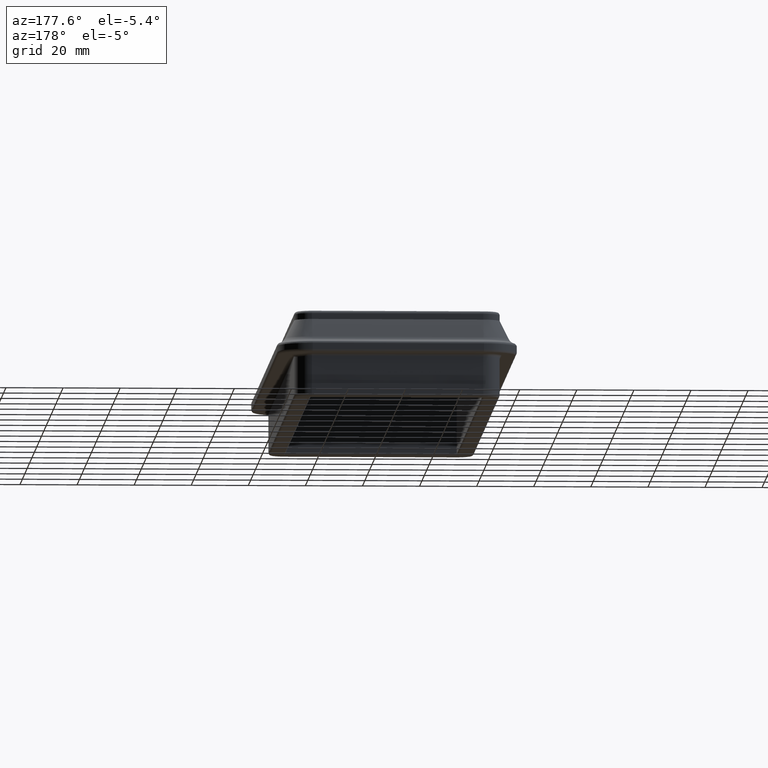
[diagram: clean part render]
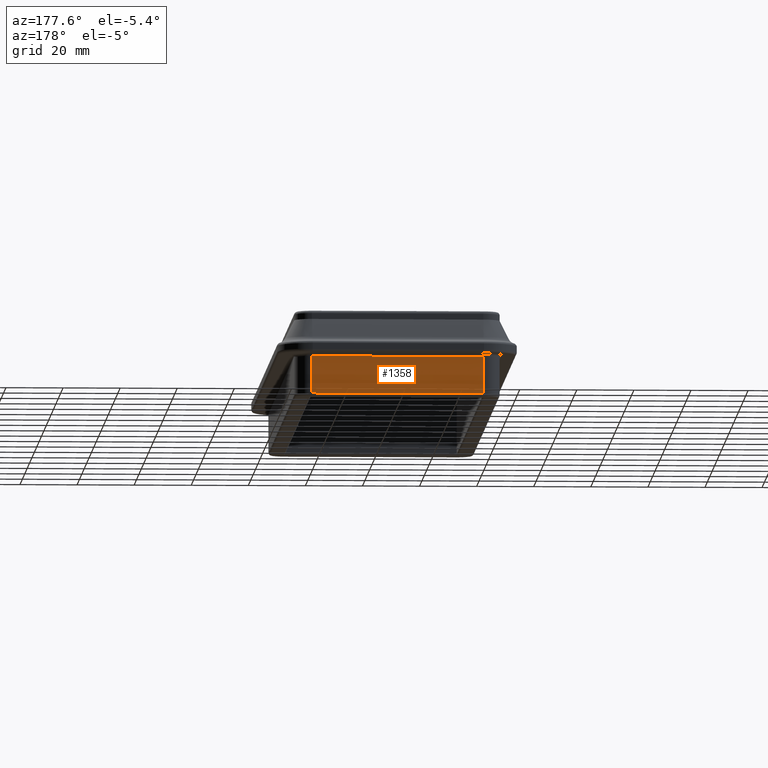
[diagram: same view with one face highlighted and labeled with its STEP entity id]
A machine part, auxiliary view. The second image highlights one B-rep face of the part: STEP entity #1358.
In plain terms, the highlighted planar face has unit normal (0, 1, 0).
Its self-contained STEP definition (entity closure, byte-faithful):
#28=PLANE('',#1514);
#101=FACE_OUTER_BOUND('',#196,.T.);
#196=EDGE_LOOP('',(#978,#979,#980,#981));
#291=LINE('',#2270,#391);
#295=LINE('',#2283,#395);
#296=LINE('',#2285,#396);
#297=LINE('',#2286,#397);
#391=VECTOR('',#1791,10.);
#395=VECTOR('',#1807,10.);
#396=VECTOR('',#1808,10.);
#397=VECTOR('',#1809,10.);
#603=VERTEX_POINT('',#2262);
#605=VERTEX_POINT('',#2268);
#608=VERTEX_POINT('',#2282);
#609=VERTEX_POINT('',#2284);
#737=EDGE_CURVE('',#605,#603,#291,.T.);
#744=EDGE_CURVE('',#608,#605,#295,.T.);
#745=EDGE_CURVE('',#609,#608,#296,.T.);
#746=EDGE_CURVE('',#609,#603,#297,.T.);
#978=ORIENTED_EDGE('',*,*,#737,.F.);
#979=ORIENTED_EDGE('',*,*,#744,.F.);
#980=ORIENTED_EDGE('',*,*,#745,.F.);
#981=ORIENTED_EDGE('',*,*,#746,.T.);
#1358=ADVANCED_FACE('',(#101),#28,.T.);
#1514=AXIS2_PLACEMENT_3D('',#2281,#1805,#1806);
#1791=DIRECTION('',(-1.,0.,0.));
#1805=DIRECTION('center_axis',(0.,1.,5.9211894646675E-16));
#1806=DIRECTION('ref_axis',(3.62568286252504E-32,-5.9211894646675E-16,1.));
#1807=DIRECTION('',(3.62568286252504E-32,-5.9211894646675E-16,1.));
#1808=DIRECTION('',(1.,0.,0.));
#1809=DIRECTION('',(3.62568286252504E-32,-5.9211894646675E-16,1.));
#2262=CARTESIAN_POINT('',(-30.,114.,-1.00000000000003));
#2268=CARTESIAN_POINT('',(30.,114.,-1.00000000000003));
#2270=CARTESIAN_POINT('',(-33.,114.,-1.00000000000003));
#2281=CARTESIAN_POINT('Origin',(-30.,114.,-15.));
#2282=CARTESIAN_POINT('',(30.,114.,-14.));
#2283=CARTESIAN_POINT('',(30.,114.,-15.));
#2284=CARTESIAN_POINT('',(-30.,114.,-14.));
#2285=CARTESIAN_POINT('',(-30.,114.,-14.));
#2286=CARTESIAN_POINT('',(-30.,114.,-15.));